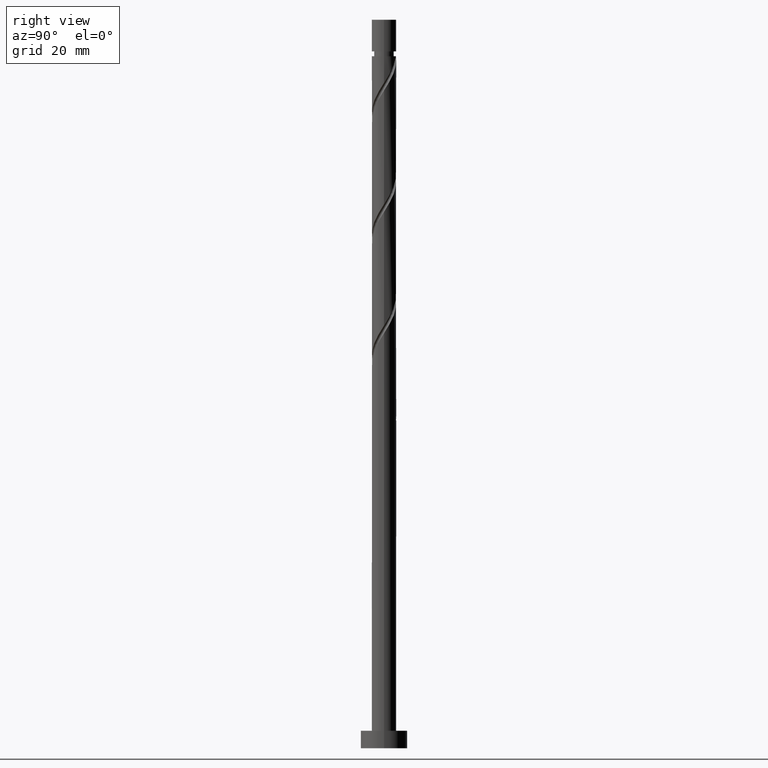
[diagram: clean part render]
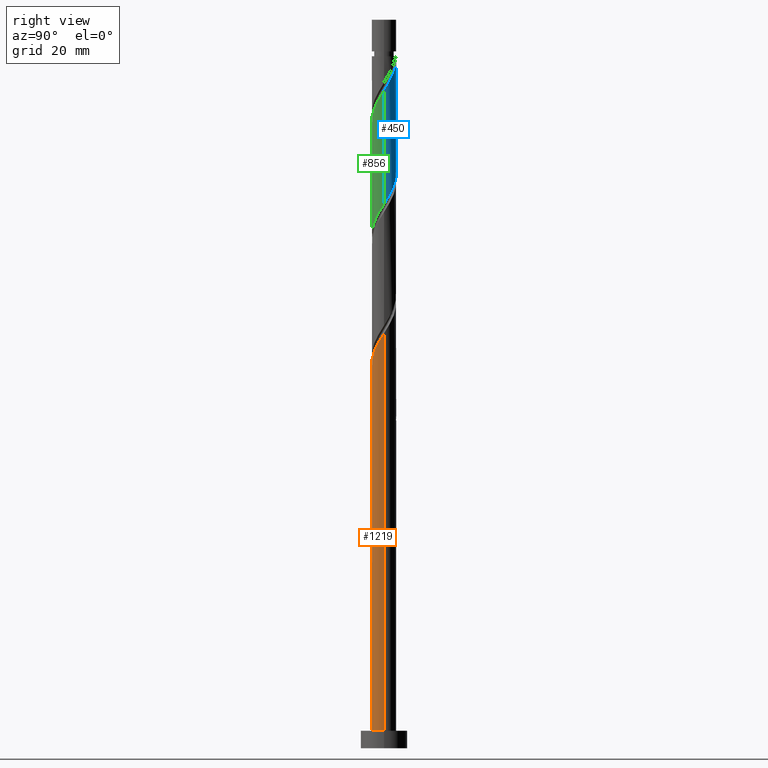
[diagram: same view with three faces highlighted in distinct colors, each labeled with its STEP entity id]
A machine part, right view with three faces highlighted in distinct colors.
Their STEP definitions:

[orange] entity #1219 — the highlighted cylindrical surface (edge-blend (fillet) strip) has radius 2.1 mm, axis along (-0, -0, -1).
#15 = CARTESIAN_POINT ( 'NONE',  ( -1.664463500085770375, -1.322947047055944791, 63.00504614362537126 ) ) ;
#61 = VERTEX_POINT ( 'NONE', #1168 ) ;
#105 = CARTESIAN_POINT ( 'NONE',  ( 1.772544917859297131, -1.174185737693570930, 69.25504614362534994 ) ) ;
#123 = DIRECTION ( 'NONE',  ( 1.000000000000000000, 0.000000000000000000, 0.000000000000000000 ) ) ;
#128 = CARTESIAN_POINT ( 'NONE',  ( 0.4178947235847810249, -2.058000000000002938, 66.65087947695867854 ) ) ;
#134 = DIRECTION ( 'NONE',  ( 0.000000000000000000, 0.000000000000000000, 1.000000000000000000 ) ) ;
#209 = EDGE_CURVE ( 'NONE', #1528, #574, #1474, .T. ) ;
#241 = FACE_OUTER_BOUND ( 'NONE', #942, .T. ) ;
#331 = CARTESIAN_POINT ( 'NONE',  ( -2.100000000000003197, -2.413889548096119256E-15, 60.77774370215509236 ) ) ;
#359 = CARTESIAN_POINT ( 'NONE',  ( 2.100000000000003197, 2.114027492432004742E-15, 71.19441036882174956 ) ) ;
#374 = CARTESIAN_POINT ( 'NONE',  ( 0.09193954539688480032, -2.124188021909555690, 66.13004614362536415 ) ) ;
#432 = ORIENTED_EDGE ( 'NONE', *, *, #209, .T. ) ;
#475 = CIRCLE ( 'NONE', #1363, 2.100000000000000089 ) ;
#478 = CARTESIAN_POINT ( 'NONE',  ( 0.7438499017726772911, -1.991811978090451074, 67.17171281029202135 ) ) ;
#547 = CARTESIAN_POINT ( 'NONE',  ( -2.100000000000000089, 0.000000000000000000, 3.000000000000000000 ) ) ;
#574 = VERTEX_POINT ( 'NONE', #547 ) ;
#613 = CARTESIAN_POINT ( 'NONE',  ( 1.547745982457620739, -1.419324618889670209, 68.73421281029203556 ) ) ;
#620 = CARTESIAN_POINT ( 'NONE',  ( 1.322947047055944347, -1.664463500085770375, 68.21337947695867854 ) ) ;
#628 = CARTESIAN_POINT ( 'NONE',  ( -2.100000000000003642, -0.2110579412044349401, 61.11204827756294122 ) ) ;
#670 = DIRECTION ( 'NONE',  ( -0.000000000000000000, -0.000000000000000000, -1.000000000000000000 ) ) ;
#681 = AXIS2_PLACEMENT_3D ( 'NONE', #750, #1358, #744 ) ;
#705 = ORIENTED_EDGE ( 'NONE', *, *, #1128, .T. ) ;
#720 = CARTESIAN_POINT ( 'NONE',  ( -0.8715781159782026721, -1.910589329957617988, 64.56754614362534994 ) ) ;
#728 = CARTESIAN_POINT ( 'NONE',  ( -2.058000000000002938, -0.4178947235847811914, 61.44254614362533573 ) ) ;
#737 = CARTESIAN_POINT ( 'NONE',  ( -0.5689704942628341922, -2.048633742055939955, 65.08837947695869275 ) ) ;
#744 = DIRECTION ( 'NONE',  ( -1.000000000000000000, 0.000000000000000000, 0.000000000000000000 ) ) ;
#750 = CARTESIAN_POINT ( 'NONE',  ( 0.000000000000000000, 0.000000000000000000, 125.0000000000000000 ) ) ;
#764 = LINE ( 'NONE', #1494, #1438 ) ;
#786 = VERTEX_POINT ( 'NONE', #1488 ) ;
#832 =( BOUNDED_CURVE ( )  B_SPLINE_CURVE ( 2, ( #1226, #628, #728, #1209, #1574, #15, #1106, #989, #720, #737, #1201, #374, #128, #478, #1460, #620, #613, #105, #1468, #1446, #1077, #1557, #359 ),
 .UNSPECIFIED., .F., .T. ) 
 B_SPLINE_CURVE_WITH_KNOTS ( ( 3, 2, 2, 2, 2, 2, 2, 2, 2, 2, 2, 3 ),
 ( 0.05453220231385520061, 0.06250000000000000000, 0.07499999999999995559, 0.08750000000000002220, 0.09999999999999997780, 0.1125000000000000444, 0.1250000000000000000, 0.1374999999999999556, 0.1500000000000000222, 0.1624999999999999778, 0.1750000000000000444, 0.1795322023138549439 ),
 .UNSPECIFIED. ) 
 CURVE ( )  GEOMETRIC_REPRESENTATION_ITEM ( )  RATIONAL_B_SPLINE_CURVE ( ( 0.9039174447099408427, 0.9019565955404700297, 0.9090909090909184975, 0.8978984914501344505, 0.9090909090909184975, 0.8978984914501344505, 0.9090909090909184975, 0.8978984914501344505, 0.9090909090909184975, 0.8978984914501344505, 0.9090909090909184975, 0.8978984914501344505, 0.9090909090909184975, 0.8978984914501344505, 0.9090909090909184975, 0.8978984914501344505, 0.9090909090909184975, 0.8978984914501344505, 0.9090909090909184975, 0.8978984914501344505, 0.9090909090909184975, 0.9050328050005831404, 0.9039174447099407317 ) ) 
 REPRESENTATION_ITEM ( '' )  );
#855 = EDGE_CURVE ( 'NONE', #786, #61, #764, .T. ) ;
#942 = EDGE_LOOP ( 'NONE', ( #1329, #961, #432, #705 ) ) ;
#961 = ORIENTED_EDGE ( 'NONE', *, *, #1251, .F. ) ;
#983 = DIRECTION ( 'NONE',  ( -0.000000000000000000, -0.000000000000000000, -1.000000000000000000 ) ) ;
#989 = CARTESIAN_POINT ( 'NONE',  ( -1.174185737693570708, -1.772544917859297131, 64.04671281029202135 ) ) ;
#1077 = CARTESIAN_POINT ( 'NONE',  ( 2.086410881982748045, -0.2385154744329748555, 70.81754614362533573 ) ) ;
#1098 = CYLINDRICAL_SURFACE ( 'NONE', #681, 2.100000000000000089 ) ;
#1103 = VECTOR ( 'NONE', #983, 1000.000000000000000 ) ;
#1106 = CARTESIAN_POINT ( 'NONE',  ( -1.419324618889670209, -1.547745982457620739, 63.52587947695868564 ) ) ;
#1128 = EDGE_CURVE ( 'NONE', #574, #61, #475, .T. ) ;
#1168 = CARTESIAN_POINT ( 'NONE',  ( 2.100000000000000089, 2.571758278209441464E-16, 3.000000000000000000 ) ) ;
#1201 = CARTESIAN_POINT ( 'NONE',  ( -0.2385154744329747722, -2.086410881982748045, 65.60921281029200713 ) ) ;
#1209 = CARTESIAN_POINT ( 'NONE',  ( -1.991811978090451074, -0.7438499017726774021, 61.96337947695869275 ) ) ;
#1219 = ADVANCED_FACE ( 'NONE', ( #241 ), #1098, .T. ) ;
#1226 = CARTESIAN_POINT ( 'NONE',  ( -2.100000000000003197, -2.413889548096119256E-15, 60.77774370215509236 ) ) ;
#1251 = EDGE_CURVE ( 'NONE', #1528, #786, #832, .T. ) ;
#1329 = ORIENTED_EDGE ( 'NONE', *, *, #855, .F. ) ;
#1358 = DIRECTION ( 'NONE',  ( -0.000000000000000000, -0.000000000000000000, -1.000000000000000000 ) ) ;
#1363 = AXIS2_PLACEMENT_3D ( 'NONE', #1473, #134, #123 ) ;
#1365 = CARTESIAN_POINT ( 'NONE',  ( -2.100000000000000089, 0.000000000000000000, 125.0000000000000000 ) ) ;
#1438 = VECTOR ( 'NONE', #670, 1000.000000000000000 ) ;
#1446 = CARTESIAN_POINT ( 'NONE',  ( 2.048633742055939955, -0.5689704942628341922, 70.29671281029199292 ) ) ;
#1460 = CARTESIAN_POINT ( 'NONE',  ( 1.033398474414310542, -1.828137739088110614, 67.69254614362534994 ) ) ;
#1468 = CARTESIAN_POINT ( 'NONE',  ( 1.910589329957617988, -0.8715781159782026721, 69.77587947695867854 ) ) ;
#1473 = CARTESIAN_POINT ( 'NONE',  ( 0.000000000000000000, 0.000000000000000000, 3.000000000000000000 ) ) ;
#1474 = LINE ( 'NONE', #1365, #1103 ) ;
#1488 = CARTESIAN_POINT ( 'NONE',  ( 2.100000000000003197, 2.114027492432004742E-15, 71.19441036882174956 ) ) ;
#1494 = CARTESIAN_POINT ( 'NONE',  ( 2.100000000000000089, 2.571758278209441464E-16, 125.0000000000000000 ) ) ;
#1528 = VERTEX_POINT ( 'NONE', #331 ) ;
#1557 = CARTESIAN_POINT ( 'NONE',  ( 2.100000000000002309, -0.1196448486375162878, 71.00489927961443470 ) ) ;
#1574 = CARTESIAN_POINT ( 'NONE',  ( -1.828137739088110614, -1.033398474414310764, 62.48421281029202135 ) ) ;

[blue] entity #450 — the highlighted cylindrical surface (edge-blend (fillet) strip) has radius 2.1 mm, axis along (-0, -0, -1).
#12 = VECTOR ( 'NONE', #649, 1000.000000000000000 ) ;
#102 = CARTESIAN_POINT ( 'NONE',  ( 2.058000000000002938, 0.4178947235847808583, 113.5258794769586643 ) ) ;
#113 = CARTESIAN_POINT ( 'NONE',  ( 0.000000000000000000, 0.000000000000000000, 118.7342128102920213 ) ) ;
#117 = DIRECTION ( 'NONE',  ( -0.000000000000000000, -0.000000000000000000, -1.000000000000000000 ) ) ;
#120 = CARTESIAN_POINT ( 'NONE',  ( 1.772544917859294689, 1.174185737693568266, 95.29671281029204977 ) ) ;
#136 = AXIS2_PLACEMENT_3D ( 'NONE', #814, #1420, #1141 ) ;
#143 = EDGE_CURVE ( 'NONE', #152, #528, #963, .T. ) ;
#152 = VERTEX_POINT ( 'NONE', #1396 ) ;
#155 = CARTESIAN_POINT ( 'NONE',  ( 2.100000000000000089, 2.571758278209441464E-16, 125.0000000000000000 ) ) ;
#208 = CARTESIAN_POINT ( 'NONE',  ( 0.09193954539688536931, 2.124188021909552582, 98.42171281029203556 ) ) ;
#228 = CARTESIAN_POINT ( 'NONE',  ( 1.174185737693570930, 1.772544917859297131, 116.1300461436253784 ) ) ;
#269 = AXIS2_PLACEMENT_3D ( 'NONE', #113, #1085, #893 ) ;
#299 = CARTESIAN_POINT ( 'NONE',  ( -1.828137739088107505, 1.033398474414309876, 102.0675461436253642 ) ) ;
#305 = ORIENTED_EDGE ( 'NONE', *, *, #693, .F. ) ;
#335 = VERTEX_POINT ( 'NONE', #1320 ) ;
#344 =( BOUNDED_CURVE ( )  B_SPLINE_CURVE ( 2, ( #372, #1335, #102, #708, #1223, #1572, #1546, #228, #1216, #725, #492, #977, #1074 ),
 .UNSPECIFIED., .F., .T. ) 
 B_SPLINE_CURVE_WITH_KNOTS ( ( 3, 2, 2, 2, 2, 2, 3 ),
 ( 0.6795322023138555823, 0.6875000000000000000, 0.6999999999999998446, 0.7124999999999999112, 0.7249999999999998668, 0.7374999999999998224, 0.7499999999999997780 ),
 .UNSPECIFIED. ) 
 CURVE ( )  GEOMETRIC_REPRESENTATION_ITEM ( )  RATIONAL_B_SPLINE_CURVE ( ( 0.9039174447099405096, 0.9019565955404703628, 0.9090909090909184975, 0.8978984914501344505, 0.9090909090909184975, 0.8978984914501344505, 0.9090909090909184975, 0.8978984914501344505, 0.9090909090909184975, 0.8978984914501344505, 0.9090909090909184975, 0.8978984914501345616, 0.9090909090909183865 ) ) 
 REPRESENTATION_ITEM ( '' )  );
#372 = CARTESIAN_POINT ( 'NONE',  ( 2.100000000000003642, 1.049517194824399617E-15, 112.8610770354884352 ) ) ;
#395 = CARTESIAN_POINT ( 'NONE',  ( 1.910589329957615545, 0.8715781159782005627, 94.77587947695870696 ) ) ;
#417 = CARTESIAN_POINT ( 'NONE',  ( -2.100000000000000089, -1.019530989257995699E-15, 103.7740152517622789 ) ) ;
#450 = ADVANCED_FACE ( 'NONE', ( #455 ), #1530, .T. ) ;
#455 = FACE_OUTER_BOUND ( 'NONE', #554, .T. ) ;
#462 = CARTESIAN_POINT ( 'NONE',  ( 2.086410881982744492, 0.2385154744329734122, 93.73421281029200713 ) ) ;
#492 = CARTESIAN_POINT ( 'NONE',  ( 0.2385154744329750776, 2.086410881982748489, 117.6925461436253357 ) ) ;
#528 = VERTEX_POINT ( 'NONE', #417 ) ;
#536 = CARTESIAN_POINT ( 'NONE',  ( -2.100000000000000089, -1.019530989257995699E-15, 103.7740152517622789 ) ) ;
#554 = EDGE_LOOP ( 'NONE', ( #1048, #1210, #305, #1307, #1519 ) ) ;
#592 = CARTESIAN_POINT ( 'NONE',  ( -1.664463500085766823, 1.322947047055942793, 101.5467128102920071 ) ) ;
#595 = CARTESIAN_POINT ( 'NONE',  ( -0.4178947235847603747, 2.058000000000003382, 118.7342128102920071 ) ) ;
#598 = CARTESIAN_POINT ( 'NONE',  ( -2.100000000000000089, 0.000000000000000000, 125.0000000000000000 ) ) ;
#600 = CARTESIAN_POINT ( 'NONE',  ( 2.100000000000000089, 0.1196448486375098486, 93.54685967430289395 ) ) ;
#649 = DIRECTION ( 'NONE',  ( -0.000000000000000000, -0.000000000000000000, -1.000000000000000000 ) ) ;
#654 = CIRCLE ( 'NONE', #269, 2.099999999999998757 ) ;
#693 = EDGE_CURVE ( 'NONE', #528, #335, #1150, .T. ) ;
#708 = CARTESIAN_POINT ( 'NONE',  ( 1.991811978090451074, 0.7438499017726770690, 114.0467128102920213 ) ) ;
#725 = CARTESIAN_POINT ( 'NONE',  ( 0.5689704942628345252, 2.048633742055939955, 117.1717128102920213 ) ) ;
#741 = EDGE_CURVE ( 'NONE', #1133, #1193, #344, .T. ) ;
#814 = CARTESIAN_POINT ( 'NONE',  ( 0.000000000000000000, 0.000000000000000000, 125.0000000000000000 ) ) ;
#841 = CARTESIAN_POINT ( 'NONE',  ( 0.4178947235847814690, 2.057999999999999829, 97.90087947695870696 ) ) ;
#850 = CARTESIAN_POINT ( 'NONE',  ( 0.7438499017726771800, 1.991811978090447299, 97.38004614362539257 ) ) ;
#858 = CARTESIAN_POINT ( 'NONE',  ( 1.322947047055943237, 1.664463500085766823, 96.33837947695867854 ) ) ;
#893 = DIRECTION ( 'NONE',  ( -1.000000000000000000, 0.000000000000000000, 0.000000000000000000 ) ) ;
#963 = LINE ( 'NONE', #598, #1533 ) ;
#971 = CARTESIAN_POINT ( 'NONE',  ( -0.8715781159782010068, 1.910589329957615545, 99.98421281029202135 ) ) ;
#977 = CARTESIAN_POINT ( 'NONE',  ( -0.09193954539687868022, 2.124188021909554802, 118.2133794769587212 ) ) ;
#1015 = LINE ( 'NONE', #155, #12 ) ;
#1021 = CARTESIAN_POINT ( 'NONE',  ( -2.099999999999999201, 0.2110579412044387426, 103.4397106763544230 ) ) ;
#1048 = ORIENTED_EDGE ( 'NONE', *, *, #741, .F. ) ;
#1065 = CARTESIAN_POINT ( 'NONE',  ( -1.174185737693568932, 1.772544917859294467, 100.5050461436253642 ) ) ;
#1074 = CARTESIAN_POINT ( 'NONE',  ( -0.4178947235847603747, 2.058000000000003382, 118.7342128102920213 ) ) ;
#1081 = CARTESIAN_POINT ( 'NONE',  ( 1.547745982457618963, 1.419324618889667766, 95.81754614362534994 ) ) ;
#1085 = DIRECTION ( 'NONE',  ( -0.000000000000000000, -0.000000000000000000, -1.000000000000000000 ) ) ;
#1133 = VERTEX_POINT ( 'NONE', #1454 ) ;
#1141 = DIRECTION ( 'NONE',  ( -1.000000000000000000, 0.000000000000000000, 0.000000000000000000 ) ) ;
#1150 =( BOUNDED_CURVE ( )  B_SPLINE_CURVE ( 2, ( #536, #1021, #1402, #1392, #299, #592, #1553, #1065, #971, #1465, #1189, #208, #841, #850, #1442, #858, #1081, #120, #395, #1325, #462, #600, #1197 ),
 .UNSPECIFIED., .F., .T. ) 
 B_SPLINE_CURVE_WITH_KNOTS ( ( 3, 2, 2, 2, 2, 2, 2, 2, 2, 2, 2, 3 ),
 ( 0.4295322023138553047, 0.4375000000000000000, 0.4500000000000000111, 0.4625000000000000222, 0.4749999999999999778, 0.4874999999999999889, 0.5000000000000000000, 0.5124999999999999556, 0.5250000000000000222, 0.5374999999999999778, 0.5500000000000000444, 0.5545322023138551382 ),
 .UNSPECIFIED. ) 
 CURVE ( )  GEOMETRIC_REPRESENTATION_ITEM ( )  RATIONAL_B_SPLINE_CURVE ( ( 0.9039174447099340703, 0.9019565955404635904, 0.9090909090909118362, 0.8978984914501279002, 0.9090909090909118362, 0.8978984914501279002, 0.9090909090909118362, 0.8978984914501279002, 0.9090909090909118362, 0.8978984914501279002, 0.9090909090909118362, 0.8978984914501279002, 0.9090909090909118362, 0.8978984914501279002, 0.9090909090909118362, 0.8978984914501279002, 0.9090909090909118362, 0.8978984914501279002, 0.9090909090909118362, 0.8978984914501279002, 0.9090909090909118362, 0.9050328050005762570, 0.9039174447099340703 ) ) 
 REPRESENTATION_ITEM ( '' )  );
#1189 = CARTESIAN_POINT ( 'NONE',  ( -0.2385154744329738841, 2.086410881982744492, 98.94254614362533573 ) ) ;
#1193 = VERTEX_POINT ( 'NONE', #595 ) ;
#1197 = CARTESIAN_POINT ( 'NONE',  ( 2.100000000000000089, 2.608799884277812564E-15, 93.35734858509562173 ) ) ;
#1210 = ORIENTED_EDGE ( 'NONE', *, *, #1449, .T. ) ;
#1216 = CARTESIAN_POINT ( 'NONE',  ( 0.8715781159782027832, 1.910589329957617988, 116.6508794769586785 ) ) ;
#1223 = CARTESIAN_POINT ( 'NONE',  ( 1.828137739088110614, 1.033398474414310542, 114.5675461436253073 ) ) ;
#1298 = EDGE_CURVE ( 'NONE', #152, #1193, #654, .T. ) ;
#1307 = ORIENTED_EDGE ( 'NONE', *, *, #143, .F. ) ;
#1320 = CARTESIAN_POINT ( 'NONE',  ( 2.100000000000000089, 2.608799884277812564E-15, 93.35734858509562173 ) ) ;
#1325 = CARTESIAN_POINT ( 'NONE',  ( 2.048633742055937290, 0.5689704942628323048, 94.25504614362533573 ) ) ;
#1335 = CARTESIAN_POINT ( 'NONE',  ( 2.100000000000000977, 0.2110579412044445990, 113.1953816108963053 ) ) ;
#1392 = CARTESIAN_POINT ( 'NONE',  ( -1.991811978090447521, 0.7438499017726768470, 102.5883794769586927 ) ) ;
#1396 = CARTESIAN_POINT ( 'NONE',  ( -2.099999999999998757, 0.000000000000000000, 118.7342128102920213 ) ) ;
#1402 = CARTESIAN_POINT ( 'NONE',  ( -2.057999999999999829, 0.4178947235847810804, 103.1092128102920356 ) ) ;
#1420 = DIRECTION ( 'NONE',  ( -0.000000000000000000, -0.000000000000000000, -1.000000000000000000 ) ) ;
#1442 = CARTESIAN_POINT ( 'NONE',  ( 1.033398474414310320, 1.828137739088107505, 96.85921281029203556 ) ) ;
#1449 = EDGE_CURVE ( 'NONE', #1133, #335, #1015, .T. ) ;
#1454 = CARTESIAN_POINT ( 'NONE',  ( 2.100000000000003642, 1.049517194824399617E-15, 112.8610770354884352 ) ) ;
#1465 = CARTESIAN_POINT ( 'NONE',  ( -0.5689704942628327489, 2.048633742055936846, 99.46337947695870696 ) ) ;
#1519 = ORIENTED_EDGE ( 'NONE', *, *, #1298, .T. ) ;
#1530 = CYLINDRICAL_SURFACE ( 'NONE', #136, 2.100000000000000089 ) ;
#1533 = VECTOR ( 'NONE', #117, 1000.000000000000000 ) ;
#1546 = CARTESIAN_POINT ( 'NONE',  ( 1.419324618889670209, 1.547745982457620295, 115.6092128102919929 ) ) ;
#1553 = CARTESIAN_POINT ( 'NONE',  ( -1.419324618889668210, 1.547745982457618741, 101.0258794769586927 ) ) ;
#1572 = CARTESIAN_POINT ( 'NONE',  ( 1.664463500085770598, 1.322947047055944569, 115.0883794769586785 ) ) ;

[green] entity #856 — the highlighted cylindrical surface (edge-blend (fillet) strip) has radius 2.1 mm, axis along (-0, -0, -1).
#12 = VECTOR ( 'NONE', #649, 1000.000000000000000 ) ;
#48 = CARTESIAN_POINT ( 'NONE',  ( -2.100000000000000089, -0.1196448486375100845, 83.13019300763623676 ) ) ;
#50 = CARTESIAN_POINT ( 'NONE',  ( 0.000000000000000000, 0.000000000000000000, 125.0000000000000000 ) ) ;
#56 = VECTOR ( 'NONE', #700, 1000.000000000000000 ) ;
#57 = CARTESIAN_POINT ( 'NONE',  ( -0.2385154744329747722, -2.086410881982748045, 107.2758794769586785 ) ) ;
#87 = CARTESIAN_POINT ( 'NONE',  ( 1.772544917859297131, -1.174185737693570930, 110.9217128102920071 ) ) ;
#97 = CARTESIAN_POINT ( 'NONE',  ( 1.910589329957617988, -0.8715781159782026721, 111.4425461436253215 ) ) ;
#147 = EDGE_CURVE ( 'NONE', #335, #563, #407, .T. ) ;
#155 = CARTESIAN_POINT ( 'NONE',  ( 2.100000000000000089, 2.571758278209441464E-16, 125.0000000000000000 ) ) ;
#170 = CARTESIAN_POINT ( 'NONE',  ( -2.086410881982744492, -0.2385154744329737175, 83.31754614362534994 ) ) ;
#177 = CARTESIAN_POINT ( 'NONE',  ( -2.100000000000000089, 0.000000000000000000, 125.0000000000000000 ) ) ;
#196 = CARTESIAN_POINT ( 'NONE',  ( -0.8715781159782026721, -1.910589329957617988, 106.2342128102920213 ) ) ;
#200 = ORIENTED_EDGE ( 'NONE', *, *, #1449, .F. ) ;
#224 = ORIENTED_EDGE ( 'NONE', *, *, #1575, .F. ) ;
#236 = CARTESIAN_POINT ( 'NONE',  ( -0.09193954539688566074, -2.124188021909552582, 88.00504614362533573 ) ) ;
#266 = AXIS2_PLACEMENT_3D ( 'NONE', #50, #280, #1382 ) ;
#280 = DIRECTION ( 'NONE',  ( -0.000000000000000000, -0.000000000000000000, -1.000000000000000000 ) ) ;
#293 = CARTESIAN_POINT ( 'NONE',  ( -2.048633742055936846, -0.5689704942628327489, 83.83837947695867854 ) ) ;
#297 = VERTEX_POINT ( 'NONE', #349 ) ;
#309 = LINE ( 'NONE', #177, #56 ) ;
#311 = CARTESIAN_POINT ( 'NONE',  ( -1.322947047055942793, -1.664463500085766823, 85.92171281029202135 ) ) ;
#335 = VERTEX_POINT ( 'NONE', #1320 ) ;
#336 = CARTESIAN_POINT ( 'NONE',  ( 0.5689704942628324158, -2.048633742055936846, 89.04671281029203556 ) ) ;
#349 = CARTESIAN_POINT ( 'NONE',  ( -2.100000000000003642, -1.319393044922102325E-15, 102.4444103688217496 ) ) ;
#363 = CARTESIAN_POINT ( 'NONE',  ( 0.2385154744329734677, -2.086410881982744492, 88.52587947695867854 ) ) ;
#400 = CYLINDRICAL_SURFACE ( 'NONE', #266, 2.100000000000000089 ) ;
#407 =( BOUNDED_CURVE ( )  B_SPLINE_CURVE ( 2, ( #723, #952, #1072, #470, #1204, #839, #1440, #1323, #1450, #336, #363, #236, #1570, #686, #659, #311, #1136, #1164, #1016, #293, #170, #48, #538 ),
 .UNSPECIFIED., .F., .T. ) 
 B_SPLINE_CURVE_WITH_KNOTS ( ( 3, 2, 2, 2, 2, 2, 2, 2, 2, 2, 2, 3 ),
 ( 0.5545322023138551382, 0.5625000000000000000, 0.5749999999999999556, 0.5875000000000000222, 0.5999999999999999778, 0.6125000000000000444, 0.6250000000000000000, 0.6374999999999999556, 0.6500000000000000222, 0.6624999999999999778, 0.6750000000000000444, 0.6795322023138551382 ),
 .UNSPECIFIED. ) 
 CURVE ( )  GEOMETRIC_REPRESENTATION_ITEM ( )  RATIONAL_B_SPLINE_CURVE ( ( 0.9039174447099340703, 0.9019565955404633684, 0.9090909090909118362, 0.8978984914501279002, 0.9090909090909118362, 0.8978984914501279002, 0.9090909090909118362, 0.8978984914501279002, 0.9090909090909118362, 0.8978984914501279002, 0.9090909090909118362, 0.8978984914501279002, 0.9090909090909118362, 0.8978984914501279002, 0.9090909090909118362, 0.8978984914501279002, 0.9090909090909118362, 0.8978984914501279002, 0.9090909090909118362, 0.8978984914501279002, 0.9090909090909118362, 0.9050328050005762570, 0.9039174447099340703 ) ) 
 REPRESENTATION_ITEM ( '' )  );
#436 = CARTESIAN_POINT ( 'NONE',  ( -2.058000000000002938, -0.4178947235847811914, 103.1092128102920356 ) ) ;
#464 = CARTESIAN_POINT ( 'NONE',  ( -0.5689704942628341922, -2.048633742055939955, 106.7550461436253499 ) ) ;
#470 = CARTESIAN_POINT ( 'NONE',  ( 1.991811978090447299, -0.7438499017726769580, 92.17171281029202135 ) ) ;
#499 =( BOUNDED_CURVE ( )  B_SPLINE_CURVE ( 2, ( #584, #558, #436, #1532, #710, #931, #1294, #569, #196, #464, #57, #1051, #815, #1190, #702, #1180, #1428, #87, #97, #549, #579, #1060, #1542 ),
 .UNSPECIFIED., .F., .T. ) 
 B_SPLINE_CURVE_WITH_KNOTS ( ( 3, 2, 2, 2, 2, 2, 2, 2, 2, 2, 2, 3 ),
 ( 0.5545322023138552492, 0.5625000000000000000, 0.5749999999999999556, 0.5875000000000000222, 0.5999999999999999778, 0.6125000000000000444, 0.6250000000000000000, 0.6374999999999999556, 0.6500000000000000222, 0.6624999999999999778, 0.6750000000000000444, 0.6795322023138555823 ),
 .UNSPECIFIED. ) 
 CURVE ( )  GEOMETRIC_REPRESENTATION_ITEM ( )  RATIONAL_B_SPLINE_CURVE ( ( 0.9039174447099407317, 0.9019565955404700297, 0.9090909090909184975, 0.8978984914501344505, 0.9090909090909184975, 0.8978984914501344505, 0.9090909090909184975, 0.8978984914501344505, 0.9090909090909184975, 0.8978984914501344505, 0.9090909090909184975, 0.8978984914501344505, 0.9090909090909184975, 0.8978984914501344505, 0.9090909090909184975, 0.8978984914501344505, 0.9090909090909184975, 0.8978984914501344505, 0.9090909090909184975, 0.8978984914501344505, 0.9090909090909184975, 0.9050328050005824743, 0.9039174447099405096 ) ) 
 REPRESENTATION_ITEM ( '' )  );
#538 = CARTESIAN_POINT ( 'NONE',  ( -2.100000000000000089, -2.863682631592311736E-15, 82.94068191842897875 ) ) ;
#549 = CARTESIAN_POINT ( 'NONE',  ( 2.048633742055939955, -0.5689704942628341922, 111.9633794769586785 ) ) ;
#558 = CARTESIAN_POINT ( 'NONE',  ( -2.100000000000003197, -0.2110579412044361614, 102.7787149442296055 ) ) ;
#563 = VERTEX_POINT ( 'NONE', #1178 ) ;
#568 = EDGE_CURVE ( 'NONE', #297, #563, #309, .T. ) ;
#569 = CARTESIAN_POINT ( 'NONE',  ( -1.174185737693570708, -1.772544917859297131, 105.7133794769586927 ) ) ;
#579 = CARTESIAN_POINT ( 'NONE',  ( 2.086410881982748045, -0.2385154744329748555, 112.4842128102920071 ) ) ;
#584 = CARTESIAN_POINT ( 'NONE',  ( -2.100000000000003642, -1.319393044922102127E-15, 102.4444103688217638 ) ) ;
#649 = DIRECTION ( 'NONE',  ( -0.000000000000000000, -0.000000000000000000, -1.000000000000000000 ) ) ;
#659 = CARTESIAN_POINT ( 'NONE',  ( -1.033398474414309876, -1.828137739088107505, 86.44254614362534994 ) ) ;
#682 = ORIENTED_EDGE ( 'NONE', *, *, #568, .T. ) ;
#686 = CARTESIAN_POINT ( 'NONE',  ( -0.7438499017726769580, -1.991811978090447299, 86.96337947695873538 ) ) ;
#700 = DIRECTION ( 'NONE',  ( -0.000000000000000000, -0.000000000000000000, -1.000000000000000000 ) ) ;
#702 = CARTESIAN_POINT ( 'NONE',  ( 1.033398474414310542, -1.828137739088110614, 109.3592128102920213 ) ) ;
#710 = CARTESIAN_POINT ( 'NONE',  ( -1.828137739088110614, -1.033398474414310764, 104.1508794769586501 ) ) ;
#723 = CARTESIAN_POINT ( 'NONE',  ( 2.100000000000000089, 2.608799884277812564E-15, 93.35734858509562173 ) ) ;
#771 = FACE_OUTER_BOUND ( 'NONE', #927, .T. ) ;
#811 = ORIENTED_EDGE ( 'NONE', *, *, #147, .F. ) ;
#815 = CARTESIAN_POINT ( 'NONE',  ( 0.4178947235847810249, -2.058000000000002938, 108.3175461436253215 ) ) ;
#839 = CARTESIAN_POINT ( 'NONE',  ( 1.664463500085766823, -1.322947047055943237, 91.13004614362537836 ) ) ;
#856 = ADVANCED_FACE ( 'NONE', ( #771 ), #400, .T. ) ;
#927 = EDGE_LOOP ( 'NONE', ( #200, #224, #682, #811 ) ) ;
#931 = CARTESIAN_POINT ( 'NONE',  ( -1.664463500085770375, -1.322947047055944791, 104.6717128102920356 ) ) ;
#952 = CARTESIAN_POINT ( 'NONE',  ( 2.100000000000000089, -0.2110579412044337189, 93.02304400968777998 ) ) ;
#1015 = LINE ( 'NONE', #155, #12 ) ;
#1016 = CARTESIAN_POINT ( 'NONE',  ( -1.910589329957615323, -0.8715781159782007848, 84.35921281029204977 ) ) ;
#1051 = CARTESIAN_POINT ( 'NONE',  ( 0.09193954539688480032, -2.124188021909555690, 107.7967128102920640 ) ) ;
#1060 = CARTESIAN_POINT ( 'NONE',  ( 2.100000000000004530, -0.1196448486374994680, 112.6715659462811914 ) ) ;
#1072 = CARTESIAN_POINT ( 'NONE',  ( 2.057999999999999829, -0.4178947235847813024, 92.69254614362534994 ) ) ;
#1133 = VERTEX_POINT ( 'NONE', #1454 ) ;
#1136 = CARTESIAN_POINT ( 'NONE',  ( -1.547745982457618963, -1.419324618889667766, 85.40087947695867854 ) ) ;
#1164 = CARTESIAN_POINT ( 'NONE',  ( -1.772544917859294467, -1.174185737693568932, 84.88004614362536415 ) ) ;
#1178 = CARTESIAN_POINT ( 'NONE',  ( -2.100000000000000089, -2.863682631592311736E-15, 82.94068191842896454 ) ) ;
#1180 = CARTESIAN_POINT ( 'NONE',  ( 1.322947047055944347, -1.664463500085770375, 109.8800461436253642 ) ) ;
#1190 = CARTESIAN_POINT ( 'NONE',  ( 0.7438499017726772911, -1.991811978090451074, 108.8383794769586785 ) ) ;
#1204 = CARTESIAN_POINT ( 'NONE',  ( 1.828137739088107505, -1.033398474414310098, 91.65087947695869275 ) ) ;
#1294 = CARTESIAN_POINT ( 'NONE',  ( -1.419324618889670209, -1.547745982457620739, 105.1925461436253215 ) ) ;
#1320 = CARTESIAN_POINT ( 'NONE',  ( 2.100000000000000089, 2.608799884277812564E-15, 93.35734858509562173 ) ) ;
#1323 = CARTESIAN_POINT ( 'NONE',  ( 1.174185737693568932, -1.772544917859294689, 90.08837947695869275 ) ) ;
#1382 = DIRECTION ( 'NONE',  ( -1.000000000000000000, 0.000000000000000000, 0.000000000000000000 ) ) ;
#1428 = CARTESIAN_POINT ( 'NONE',  ( 1.547745982457620739, -1.419324618889670209, 110.4008794769586643 ) ) ;
#1440 = CARTESIAN_POINT ( 'NONE',  ( 1.419324618889667766, -1.547745982457618963, 90.60921281029202135 ) ) ;
#1449 = EDGE_CURVE ( 'NONE', #1133, #335, #1015, .T. ) ;
#1450 = CARTESIAN_POINT ( 'NONE',  ( 0.8715781159782007848, -1.910589329957615323, 89.56754614362537836 ) ) ;
#1454 = CARTESIAN_POINT ( 'NONE',  ( 2.100000000000003642, 1.049517194824399617E-15, 112.8610770354884352 ) ) ;
#1532 = CARTESIAN_POINT ( 'NONE',  ( -1.991811978090451074, -0.7438499017726774021, 103.6300461436253357 ) ) ;
#1542 = CARTESIAN_POINT ( 'NONE',  ( 2.100000000000003642, 1.049517194824399617E-15, 112.8610770354884352 ) ) ;
#1570 = CARTESIAN_POINT ( 'NONE',  ( -0.4178947235847811914, -2.057999999999999829, 87.48421281029202135 ) ) ;
#1575 = EDGE_CURVE ( 'NONE', #297, #1133, #499, .T. ) ;